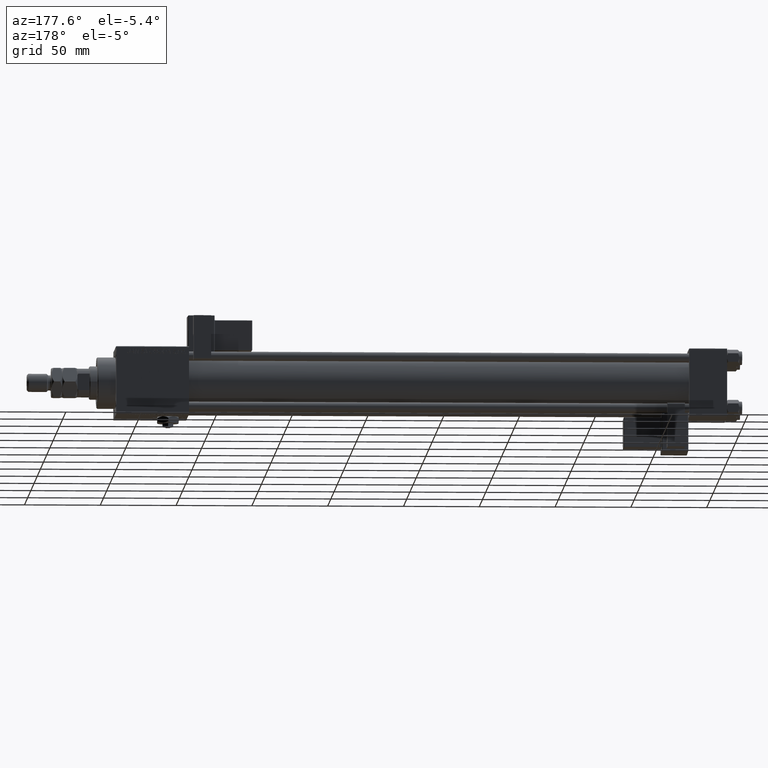
[diagram: clean part render]
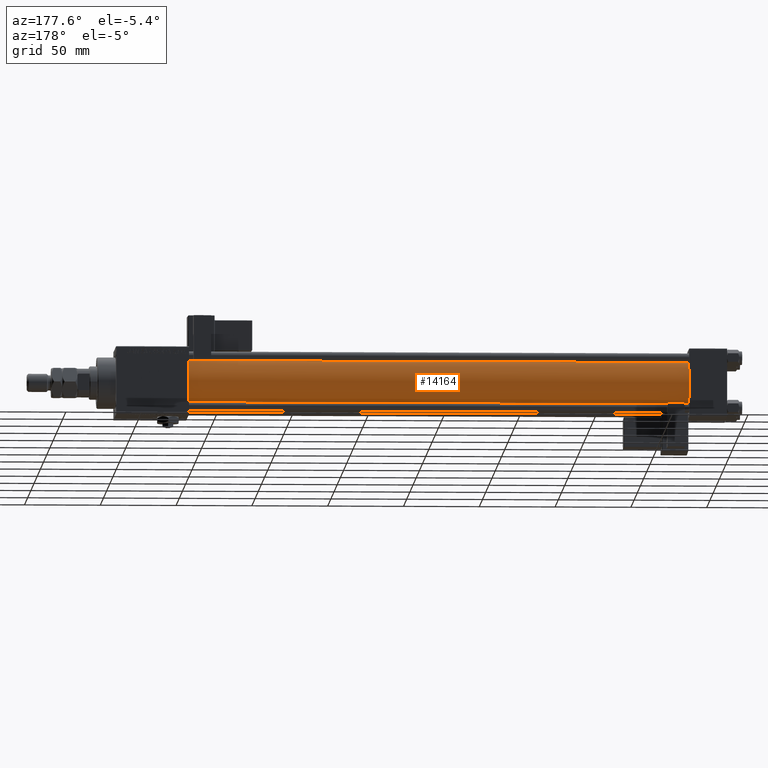
[diagram: same view with one face highlighted and labeled with its STEP entity id]
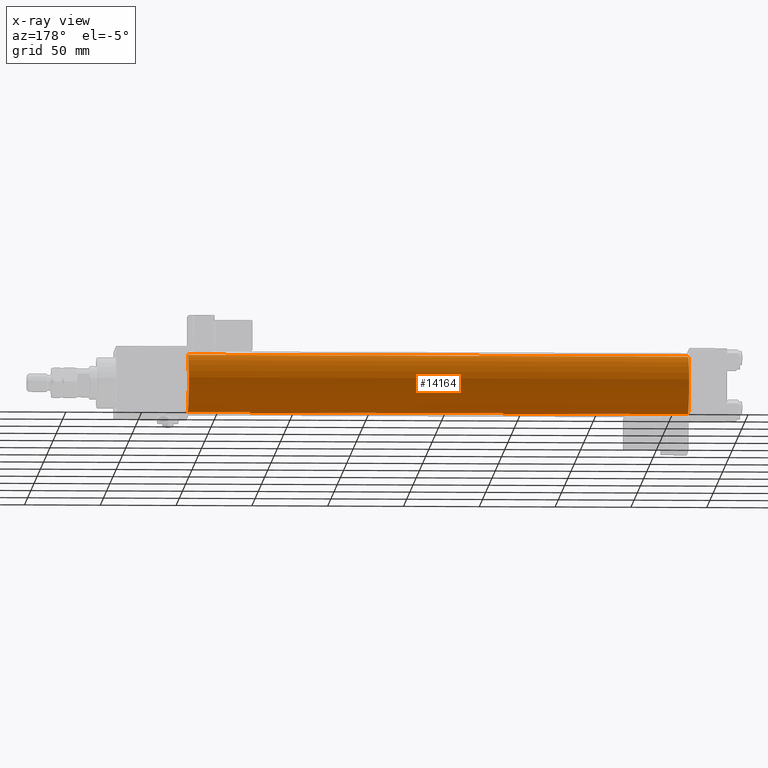
[diagram: x-ray of the same camera — body ghosted, the highlighted face saturated]
A machine part, auxiliary view. The second image highlights one B-rep face of the part: STEP entity #14164.
The next image is the same camera in x-ray: the body ghosted, the highlighted face saturated — about 0% of this face is hidden behind the body in this view.
In plain terms, the highlighted cylindrical surface (edge-blend (fillet) strip) has radius 19 mm, axis along (-1, -0, -0).
Its self-contained STEP definition (entity closure, byte-faithful):
#427 = ORIENTED_EDGE ( 'NONE', *, *, #24079, .F. ) ;
#2558 = VERTEX_POINT ( 'NONE', #52596 ) ;
#3354 = VERTEX_POINT ( 'NONE', #53560 ) ;
#4204 = DIRECTION ( 'NONE',  ( 0.000000000000000000, 0.000000000000000000, -1.000000000000000000 ) ) ;
#4994 = VERTEX_POINT ( 'NONE', #24509 ) ;
#5443 = EDGE_LOOP ( 'NONE', ( #427, #30662, #34995, #46512 ) ) ;
#6809 = EDGE_CURVE ( 'NONE', #3354, #51694, #7139, .T. ) ;
#7139 = CIRCLE ( 'NONE', #14341, 19.00000000000000000 ) ;
#7615 = DIRECTION ( 'NONE',  ( 0.000000000000000000, 0.000000000000000000, 1.000000000000000000 ) ) ;
#7623 = EDGE_CURVE ( 'NONE', #2558, #3354, #21248, .T. ) ;
#8716 = DIRECTION ( 'NONE',  ( 1.000000000000000000, 0.000000000000000000, 0.000000000000000000 ) ) ;
#8999 = VECTOR ( 'NONE', #42916, 1000.000000000000000 ) ;
#13217 = CARTESIAN_POINT ( 'NONE',  ( 355.0000000000000568, -2.602085213965210642E-15, 0.000000000000000000 ) ) ;
#14164 = ADVANCED_FACE ( 'NONE', ( #36738 ), #15892, .T. ) ;
#14341 = AXIS2_PLACEMENT_3D ( 'NONE', #41677, #16868, #7615 ) ;
#15892 = CYLINDRICAL_SURFACE ( 'NONE', #44248, 19.00000000000000000 ) ;
#16868 = DIRECTION ( 'NONE',  ( 1.000000000000000000, -0.000000000000000000, 0.000000000000000000 ) ) ;
#21248 = LINE ( 'NONE', #43213, #8999 ) ;
#24079 = EDGE_CURVE ( 'NONE', #2558, #4994, #54444, .T. ) ;
#24369 = CARTESIAN_POINT ( 'NONE',  ( 25.00000000000002132, -2.602085213965210642E-15, 19.00000000000000000 ) ) ;
#24370 = DIRECTION ( 'NONE',  ( -1.000000000000000000, -0.000000000000000000, -0.000000000000000000 ) ) ;
#24509 = CARTESIAN_POINT ( 'NONE',  ( 355.0000000000000568, -2.602085213965210642E-15, 19.00000000000000000 ) ) ;
#27772 = DIRECTION ( 'NONE',  ( 0.000000000000000000, 0.000000000000000000, 1.000000000000000000 ) ) ;
#28861 = EDGE_CURVE ( 'NONE', #4994, #51694, #48749, .T. ) ;
#30662 = ORIENTED_EDGE ( 'NONE', *, *, #7623, .T. ) ;
#30745 = DIRECTION ( 'NONE',  ( -1.000000000000000000, -0.000000000000000000, -0.000000000000000000 ) ) ;
#31977 = AXIS2_PLACEMENT_3D ( 'NONE', #13217, #8716, #4204 ) ;
#33069 = CARTESIAN_POINT ( 'NONE',  ( 355.0000000000000568, -2.602085213965210642E-15, 0.000000000000000000 ) ) ;
#34941 = CARTESIAN_POINT ( 'NONE',  ( 355.0000000000000568, -2.602085213965210642E-15, 19.00000000000000000 ) ) ;
#34995 = ORIENTED_EDGE ( 'NONE', *, *, #6809, .T. ) ;
#36738 = FACE_OUTER_BOUND ( 'NONE', #5443, .T. ) ;
#41677 = CARTESIAN_POINT ( 'NONE',  ( 25.00000000000002132, -2.602085213965210642E-15, 0.000000000000000000 ) ) ;
#42916 = DIRECTION ( 'NONE',  ( -1.000000000000000000, -0.000000000000000000, -0.000000000000000000 ) ) ;
#43213 = CARTESIAN_POINT ( 'NONE',  ( 355.0000000000000568, -2.752562955852396712E-16, -19.00000000000000000 ) ) ;
#44248 = AXIS2_PLACEMENT_3D ( 'NONE', #33069, #24370, #27772 ) ;
#46512 = ORIENTED_EDGE ( 'NONE', *, *, #28861, .F. ) ;
#46538 = VECTOR ( 'NONE', #30745, 1000.000000000000000 ) ;
#48749 = LINE ( 'NONE', #34941, #46538 ) ;
#51694 = VERTEX_POINT ( 'NONE', #24369 ) ;
#52596 = CARTESIAN_POINT ( 'NONE',  ( 355.0000000000000568, -2.752562955852396712E-16, -19.00000000000000000 ) ) ;
#53560 = CARTESIAN_POINT ( 'NONE',  ( 25.00000000000002132, -2.752562955852396712E-16, -19.00000000000000000 ) ) ;
#54444 = CIRCLE ( 'NONE', #31977, 19.00000000000000000 ) ;